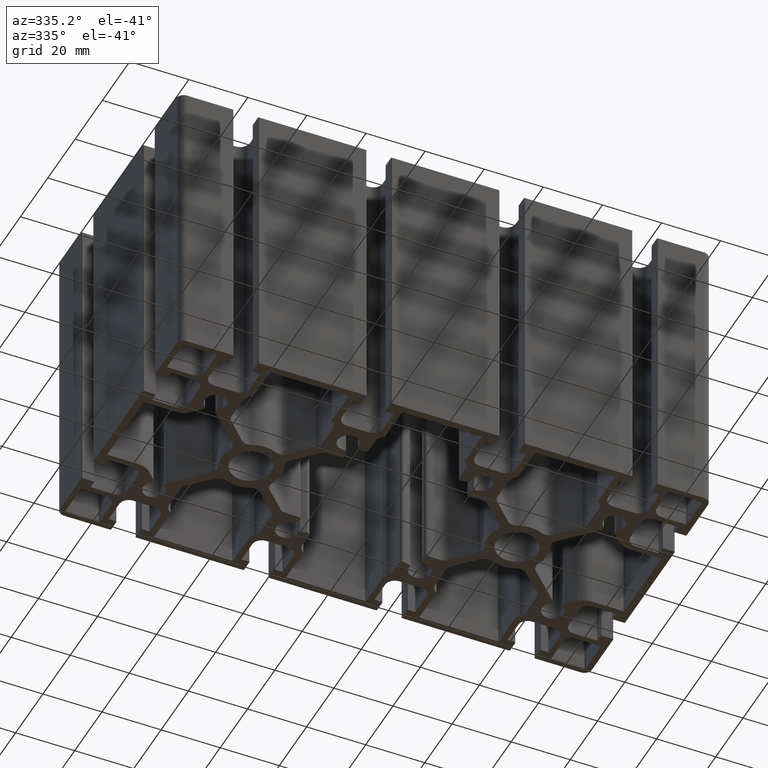
[diagram: clean part render]
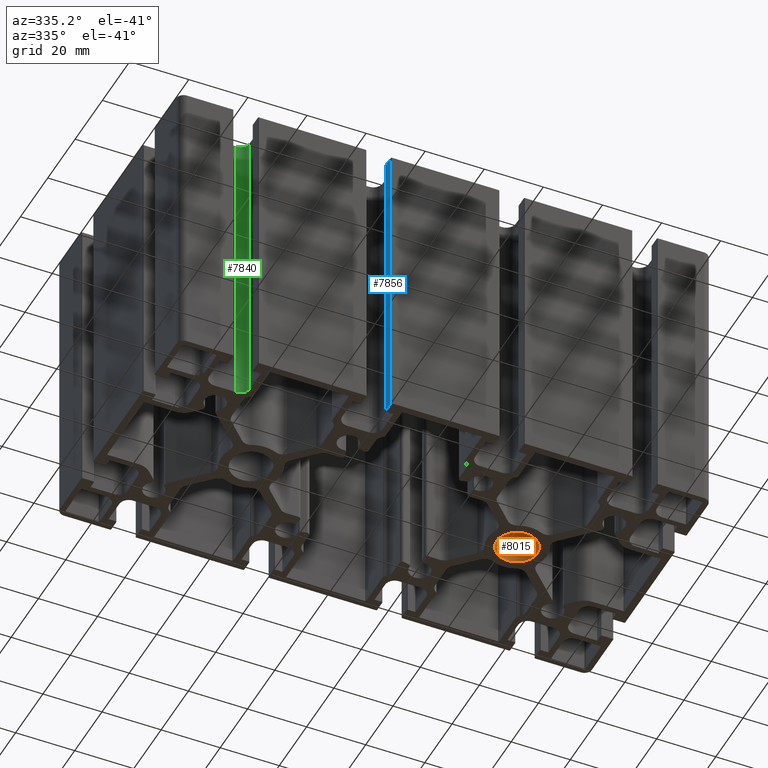
[diagram: same view with three faces highlighted in distinct colors, each labeled with its STEP entity id]
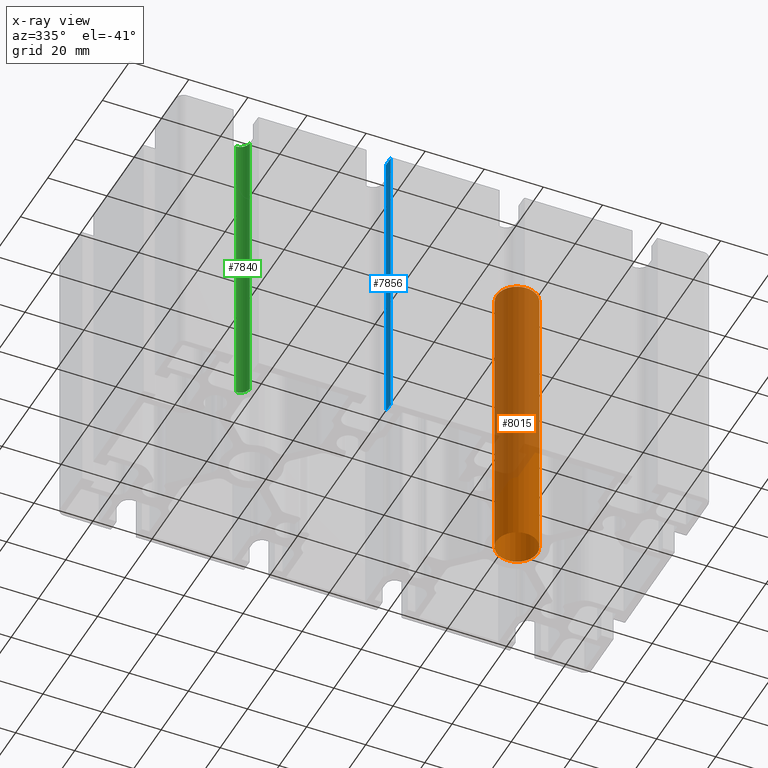
[diagram: x-ray of the same camera — body ghosted, the three highlighted faces saturated]
A machine part, auxiliary view with three faces highlighted in distinct colors.
The next image is the same camera in x-ray (body ghosted, the three faces saturated) — at least one of them is partly hidden behind the body in this view.
Their STEP definitions:

[orange] entity #8015 — the highlighted cylindrical surface (bore or boss wall) has radius 6.9 mm, axis along (0, 0, 1).
#15=FACE_BOUND('',#1350,.T.);
#303=CIRCLE('',#8686,6.9);
#304=CIRCLE('',#8687,6.9);
#601=CYLINDRICAL_SURFACE('',#8685,6.9);
#941=FACE_OUTER_BOUND('',#1349,.T.);
#1349=EDGE_LOOP('',(#6157));
#1350=EDGE_LOOP('',(#6158));
#3641=VERTEX_POINT('',#13041);
#3642=VERTEX_POINT('',#13043);
#4697=EDGE_CURVE('',#3641,#3641,#303,.T.);
#4698=EDGE_CURVE('',#3642,#3642,#304,.T.);
#6157=ORIENTED_EDGE('',*,*,#4697,.F.);
#6158=ORIENTED_EDGE('',*,*,#4698,.F.);
#8015=ADVANCED_FACE('',(#941,#15),#601,.F.);
#8685=AXIS2_PLACEMENT_3D('',#13040,#10559,#10560);
#8686=AXIS2_PLACEMENT_3D('',#13042,#10561,#10562);
#8687=AXIS2_PLACEMENT_3D('',#13044,#10563,#10564);
#10559=DIRECTION('center_axis',(0.,0.,1.));
#10560=DIRECTION('ref_axis',(-1.,0.,0.));
#10561=DIRECTION('center_axis',(0.,0.,-1.));
#10562=DIRECTION('ref_axis',(-1.,0.,0.));
#10563=DIRECTION('center_axis',(0.,0.,1.));
#10564=DIRECTION('ref_axis',(-1.,0.,0.));
#13040=CARTESIAN_POINT('Origin',(45.,-5.51091059616309E-15,0.));
#13041=CARTESIAN_POINT('',(51.9,-6.35591688757476E-15,100.));
#13042=CARTESIAN_POINT('Origin',(45.,-5.51091059616309E-15,100.));
#13043=CARTESIAN_POINT('',(51.9,-4.66590430475142E-15,0.));
#13044=CARTESIAN_POINT('Origin',(45.,-5.51091059616309E-15,0.));

[blue] entity #7856 — the highlighted planar face has unit normal (1, 0, 0).
#782=FACE_OUTER_BOUND('',#1190,.T.);
#1190=EDGE_LOOP('',(#5521,#5522,#5523,#5524));
#1712=LINE('',#12058,#2500);
#1713=LINE('',#12061,#2501);
#1714=LINE('',#12063,#2502);
#1715=LINE('',#12064,#2503);
#2500=VECTOR('',#9604,100.);
#2501=VECTOR('',#9607,3.7);
#2502=VECTOR('',#9608,3.7);
#2503=VECTOR('',#9609,100.);
#3303=VERTEX_POINT('',#12054);
#3304=VERTEX_POINT('',#12056);
#3305=VERTEX_POINT('',#12060);
#3306=VERTEX_POINT('',#12062);
#4210=EDGE_CURVE('',#3304,#3303,#1712,.T.);
#4211=EDGE_CURVE('',#3303,#3305,#1713,.T.);
#4212=EDGE_CURVE('',#3306,#3304,#1714,.T.);
#4213=EDGE_CURVE('',#3306,#3305,#1715,.T.);
#5521=ORIENTED_EDGE('',*,*,#4211,.F.);
#5522=ORIENTED_EDGE('',*,*,#4210,.F.);
#5523=ORIENTED_EDGE('',*,*,#4212,.F.);
#5524=ORIENTED_EDGE('',*,*,#4213,.T.);
#7607=PLANE('',#8376);
#7856=ADVANCED_FACE('',(#782),#7607,.F.);
#8376=AXIS2_PLACEMENT_3D('',#12059,#9605,#9606);
#9604=DIRECTION('',(0.,0.,1.));
#9605=DIRECTION('center_axis',(1.,0.,0.));
#9606=DIRECTION('ref_axis',(0.,0.,-1.));
#9607=DIRECTION('',(0.,-1.,0.));
#9608=DIRECTION('',(0.,1.,0.));
#9609=DIRECTION('',(0.,0.,1.));
#12054=CARTESIAN_POINT('',(-18.35,-41.,100.));
#12056=CARTESIAN_POINT('',(-18.35,-41.,0.));
#12058=CARTESIAN_POINT('',(-18.35,-41.,0.));
#12059=CARTESIAN_POINT('Origin',(-18.35,-41.,0.));
#12060=CARTESIAN_POINT('',(-18.35,-44.7,100.));
#12061=CARTESIAN_POINT('',(-18.35,-20.5,100.));
#12062=CARTESIAN_POINT('',(-18.35,-44.7,0.));
#12063=CARTESIAN_POINT('',(-18.35,-20.5,0.));
#12064=CARTESIAN_POINT('',(-18.35,-44.7,0.));

[green] entity #7840 — the highlighted cylindrical surface (edge-blend (fillet) strip) has radius 3.2 mm, axis along (0, 0, 1).
#139=CIRCLE('',#8347,3.2);
#140=CIRCLE('',#8348,3.2);
#519=CYLINDRICAL_SURFACE('',#8346,3.2);
#766=FACE_OUTER_BOUND('',#1174,.T.);
#1174=EDGE_LOOP('',(#5457,#5458,#5459,#5460));
#1677=LINE('',#11962,#2465);
#1678=LINE('',#11965,#2466);
#2465=VECTOR('',#9513,100.);
#2466=VECTOR('',#9516,100.);
#3269=VERTEX_POINT('',#11958);
#3270=VERTEX_POINT('',#11959);
#3271=VERTEX_POINT('',#11961);
#3272=VERTEX_POINT('',#11963);
#4161=EDGE_CURVE('',#3269,#3270,#139,.T.);
#4162=EDGE_CURVE('',#3271,#3269,#1677,.T.);
#4163=EDGE_CURVE('',#3272,#3271,#140,.T.);
#4164=EDGE_CURVE('',#3272,#3270,#1678,.T.);
#5457=ORIENTED_EDGE('',*,*,#4161,.F.);
#5458=ORIENTED_EDGE('',*,*,#4162,.F.);
#5459=ORIENTED_EDGE('',*,*,#4163,.F.);
#5460=ORIENTED_EDGE('',*,*,#4164,.T.);
#7840=ADVANCED_FACE('',(#766),#519,.F.);
#8346=AXIS2_PLACEMENT_3D('',#11957,#9509,#9510);
#8347=AXIS2_PLACEMENT_3D('',#11960,#9511,#9512);
#8348=AXIS2_PLACEMENT_3D('',#11964,#9514,#9515);
#9509=DIRECTION('center_axis',(0.,0.,1.));
#9510=DIRECTION('ref_axis',(1.,0.,0.));
#9511=DIRECTION('center_axis',(0.,0.,-1.));
#9512=DIRECTION('ref_axis',(1.,0.,0.));
#9513=DIRECTION('',(0.,0.,1.));
#9514=DIRECTION('center_axis',(0.,0.,1.));
#9515=DIRECTION('ref_axis',(1.,0.,0.));
#9516=DIRECTION('',(0.,0.,1.));
#11957=CARTESIAN_POINT('Origin',(-63.8,-32.9,0.));
#11958=CARTESIAN_POINT('',(-63.8,-29.7,100.));
#11959=CARTESIAN_POINT('',(-60.6,-32.9,100.));
#11960=CARTESIAN_POINT('Origin',(-63.8,-32.9,100.));
#11961=CARTESIAN_POINT('',(-63.8,-29.7,0.));
#11962=CARTESIAN_POINT('',(-63.8,-29.7,0.));
#11963=CARTESIAN_POINT('',(-60.6,-32.9,0.));
#11964=CARTESIAN_POINT('Origin',(-63.8,-32.9,0.));
#11965=CARTESIAN_POINT('',(-60.6,-32.9,0.));